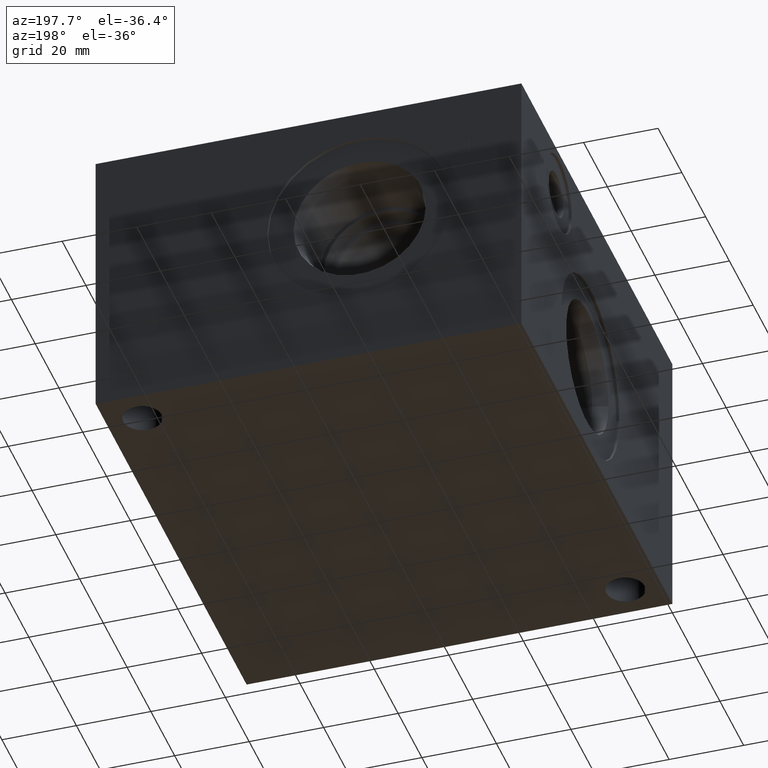
[diagram: clean part render]
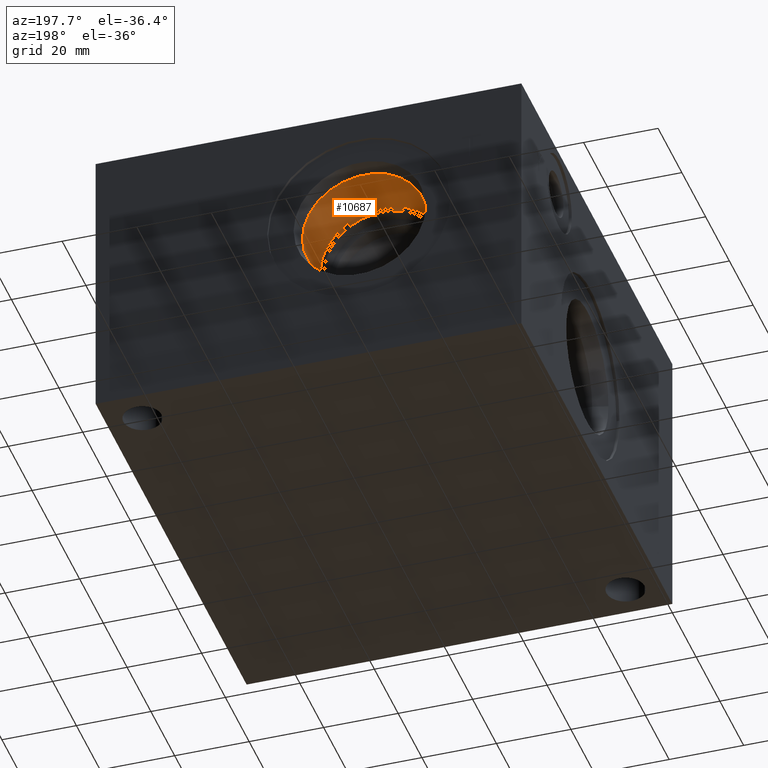
[diagram: same view with one face highlighted and labeled with its STEP entity id]
A machine part, auxiliary view. The second image highlights one B-rep face of the part: STEP entity #10687.
In plain terms, the highlighted cylindrical surface (bore or boss wall) has radius 16.6751 mm, axis along (0, 1, 0).
Its self-contained STEP definition (entity closure, byte-faithful):
#28=CYLINDRICAL_SURFACE('',#11170,16.6751);
#168=CIRCLE('',#11167,16.6751);
#169=CIRCLE('',#11168,16.6751);
#171=CIRCLE('',#11171,16.6751);
#1279=FACE_OUTER_BOUND('',#1879,.T.);
#1879=EDGE_LOOP('',(#9029,#9030,#9031,#9032,#9033));
#2933=LINE('',#18093,#3940);
#3940=VECTOR('',#13095,16.6751);
#4868=VERTEX_POINT('',#18084);
#4869=VERTEX_POINT('',#18085);
#4871=VERTEX_POINT('',#18091);
#6300=EDGE_CURVE('',#4868,#4869,#168,.T.);
#6301=EDGE_CURVE('',#4869,#4868,#169,.T.);
#6303=EDGE_CURVE('',#4871,#4871,#171,.T.);
#6304=EDGE_CURVE('',#4871,#4869,#2933,.T.);
#9029=ORIENTED_EDGE('',*,*,#6303,.F.);
#9030=ORIENTED_EDGE('',*,*,#6304,.T.);
#9031=ORIENTED_EDGE('',*,*,#6300,.F.);
#9032=ORIENTED_EDGE('',*,*,#6301,.F.);
#9033=ORIENTED_EDGE('',*,*,#6304,.F.);
#10687=ADVANCED_FACE('',(#1279),#28,.F.);
#11167=AXIS2_PLACEMENT_3D('',#18086,#13085,#13086);
#11168=AXIS2_PLACEMENT_3D('',#18087,#13087,#13088);
#11170=AXIS2_PLACEMENT_3D('',#18090,#13091,#13092);
#11171=AXIS2_PLACEMENT_3D('',#18092,#13093,#13094);
#13085=DIRECTION('center_axis',(0.,1.,0.));
#13086=DIRECTION('ref_axis',(1.,0.,0.));
#13087=DIRECTION('center_axis',(0.,1.,0.));
#13088=DIRECTION('ref_axis',(1.,0.,0.));
#13091=DIRECTION('center_axis',(0.,1.,0.));
#13092=DIRECTION('ref_axis',(1.,0.,0.));
#13093=DIRECTION('center_axis',(0.,-1.,0.));
#13094=DIRECTION('ref_axis',(1.,0.,0.));
#13095=DIRECTION('',(0.,-1.,0.));
#18084=CARTESIAN_POINT('',(60.3377,107.1626,43.6626));
#18085=CARTESIAN_POINT('',(26.9875,107.1626,43.6626));
#18086=CARTESIAN_POINT('Origin',(43.6626,107.1626,43.6626));
#18087=CARTESIAN_POINT('Origin',(43.6626,107.1626,43.6626));
#18090=CARTESIAN_POINT('Origin',(43.6626,117.0813,43.6626));
#18091=CARTESIAN_POINT('',(26.9875,122.176321153229,43.6626));
#18092=CARTESIAN_POINT('Origin',(43.6626,122.176321153229,43.6626));
#18093=CARTESIAN_POINT('',(26.9875,117.0813,43.6626));